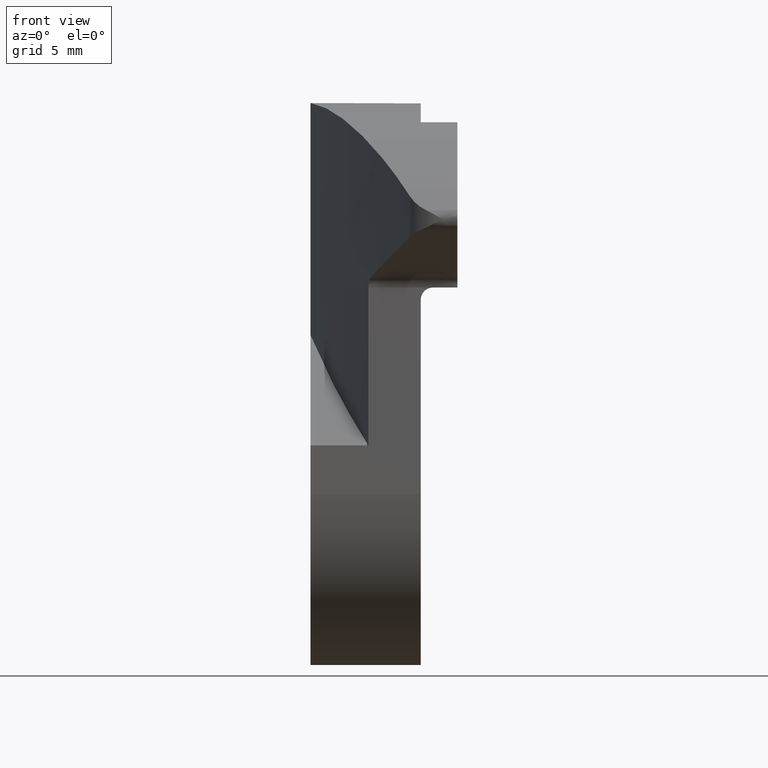
[diagram: clean part render]
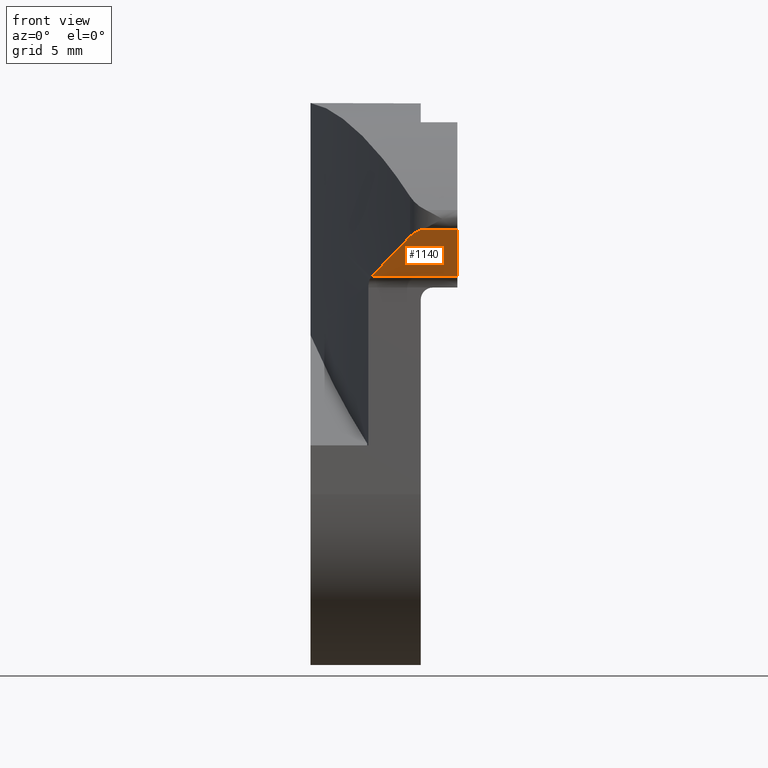
[diagram: same view with one face highlighted and labeled with its STEP entity id]
A machine part, front view. The second image highlights one B-rep face of the part: STEP entity #1140.
In plain terms, the highlighted face is a freeform B-spline surface patch.
Its self-contained STEP definition (entity closure, byte-faithful):
#152=CARTESIAN_POINT('',(8.126531298087430,-20.776144938068750,21.075241233082352));
#153=VERTEX_POINT('',#152);
#154=CARTESIAN_POINT('',(9.046326933998540,-21.794625300079549,21.612613591359199));
#155=VERTEX_POINT('',#154);
#156=CARTESIAN_POINT('',(8.126531298087430,-20.776144938068750,21.075241233082352));
#157=CARTESIAN_POINT('',(8.466782036165698,-21.393439104232293,21.400939041498464));
#158=CARTESIAN_POINT('',(9.046326933998540,-21.794625300079549,21.612613591359199));
#166=(BOUNDED_CURVE()B_SPLINE_CURVE(2,(#156,#157,#158),.UNSPECIFIED.,.F.,.U.)CURVE()GEOMETRIC_REPRESENTATION_ITEM()QUASI_UNIFORM_CURVE()RATIONAL_B_SPLINE_CURVE((1.0,0.973491336210341,1.0))REPRESENTATION_ITEM(''));
#167=EDGE_CURVE('',#153,#155,#166,.T.);
#261=CARTESIAN_POINT('',(4.965086447786369,-14.533349339004561,17.781406694451650));
#262=VERTEX_POINT('',#261);
#284=CARTESIAN_POINT('',(4.965086447786369,-14.533349339004561,17.781406694451650));
#285=CARTESIAN_POINT('',(6.436529577793309,-17.710087804331941,19.457522900924939));
#286=CARTESIAN_POINT('',(8.126531298087421,-20.776144938068750,21.075241233082352));
#294=(BOUNDED_CURVE()B_SPLINE_CURVE(2,(#284,#285,#286),.UNSPECIFIED.,.F.,.U.)CURVE()GEOMETRIC_REPRESENTATION_ITEM()QUASI_UNIFORM_CURVE()RATIONAL_B_SPLINE_CURVE((1.0,0.999387722177533,1.0))REPRESENTATION_ITEM(''));
#295=EDGE_CURVE('',#262,#153,#294,.T.);
#732=CARTESIAN_POINT('',(11.999999999999799,-21.794625300079851,21.612613591345951));
#733=VERTEX_POINT('',#732);
#734=CARTESIAN_POINT('',(11.999999999999799,-21.794625300079851,21.612613591345951));
#735=CARTESIAN_POINT('',(9.046326933998540,-21.794625300079549,21.612613591359199));
#736=QUASI_UNIFORM_CURVE('',1,(#734,#735),.UNSPECIFIED.,.F.,.U.);
#737=EDGE_CURVE('',#733,#155,#736,.T.);
#779=CARTESIAN_POINT('',(11.999999999999799,-14.533349339004820,17.781406694438552));
#780=VERTEX_POINT('',#779);
#781=CARTESIAN_POINT('',(4.965086447786369,-14.533349339004561,17.781406694451650));
#782=CARTESIAN_POINT('',(11.999999999999799,-14.533349339004820,17.781406694438552));
#783=QUASI_UNIFORM_CURVE('',1,(#781,#782),.UNSPECIFIED.,.F.,.U.);
#784=EDGE_CURVE('',#262,#780,#783,.T.);
#836=CARTESIAN_POINT('',(11.999999999999799,-21.794625300079851,21.612613591345951));
#837=CARTESIAN_POINT('',(11.999999999999799,-14.533349339004820,17.781406694438552));
#838=QUASI_UNIFORM_CURVE('',1,(#836,#837),.UNSPECIFIED.,.F.,.U.);
#839=EDGE_CURVE('',#733,#780,#838,.T.);
#1128=CARTESIAN_POINT('',(4.613692529488337,-22.157326838231221,21.803982799999329));
#1129=CARTESIAN_POINT('',(4.613692529488337,-14.170648385146450,17.590037794070909));
#1130=CARTESIAN_POINT('',(12.351394106988920,-22.157326838231221,21.803982799999329));
#1131=CARTESIAN_POINT('',(12.351394106988920,-14.170648385146450,17.590037794070909));
#1132=B_SPLINE_SURFACE_WITH_KNOTS('',1,1,((#1128,#1130),(#1129,#1131)),.UNSPECIFIED.,.F.,.F.,.U.,(2,2),(2,2),(0.0,9.030191870938161),(0.0,7.737701577500582),.UNSPECIFIED.);
#1133=ORIENTED_EDGE('',*,*,#295,.F.);
#1134=ORIENTED_EDGE('',*,*,#784,.T.);
#1135=ORIENTED_EDGE('',*,*,#839,.F.);
#1136=ORIENTED_EDGE('',*,*,#737,.T.);
#1137=ORIENTED_EDGE('',*,*,#167,.F.);
#1138=EDGE_LOOP('',(#1133,#1134,#1135,#1136,#1137));
#1139=FACE_OUTER_BOUND('',#1138,.T.);
#1140=ADVANCED_FACE('',(#1139),#1132,.T.);